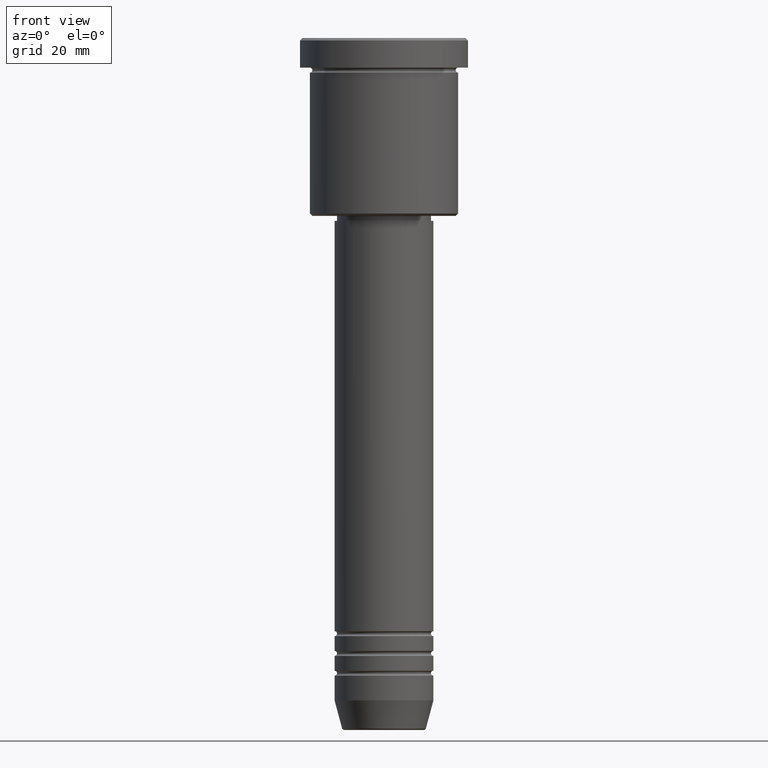
[diagram: clean part render]
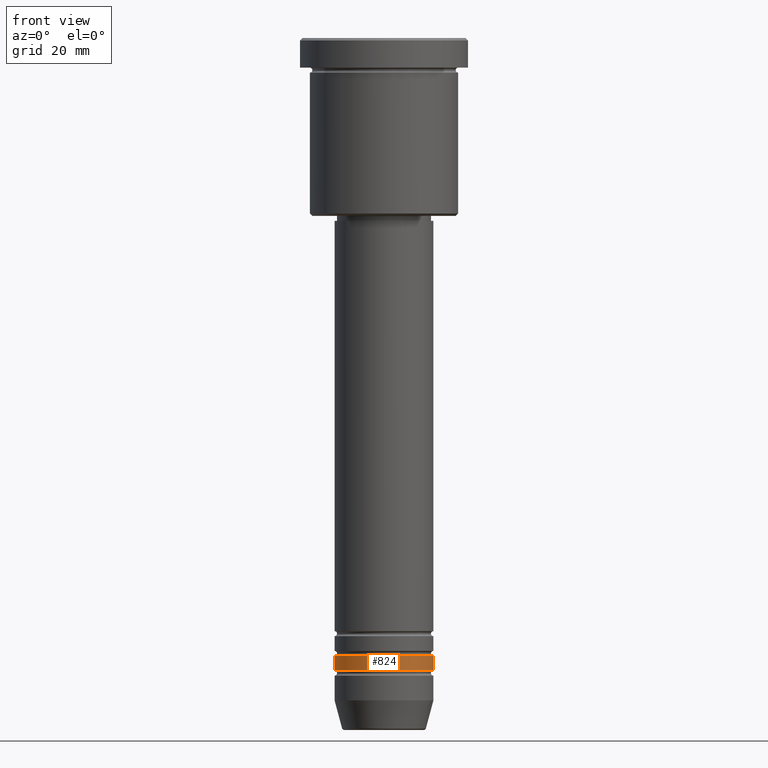
[diagram: same view with one face highlighted and labeled with its STEP entity id]
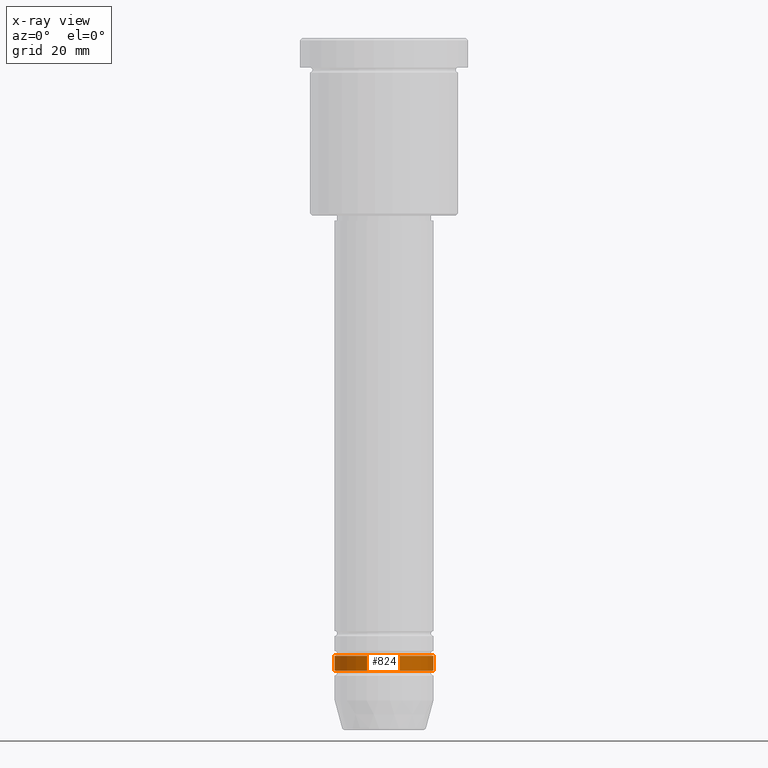
[diagram: x-ray of the same camera — body ghosted, the highlighted face saturated]
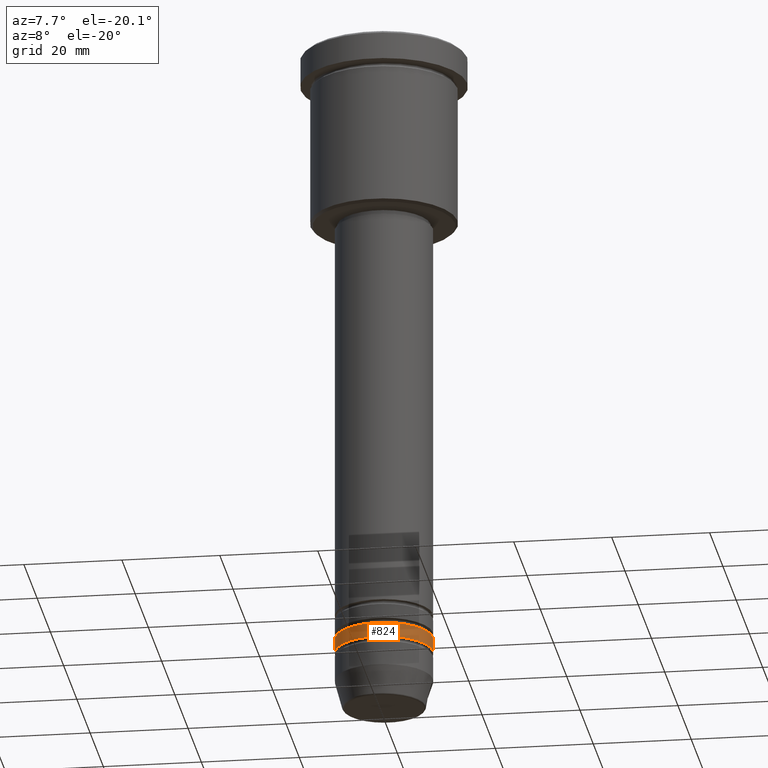
[diagram: same view with one face highlighted and labeled with its STEP entity id]
A machine part, front view. The second image highlights one B-rep face of the part: STEP entity #824.
The next image is the same camera in x-ray: the body ghosted, the highlighted face saturated — about 0% of this face is hidden behind the body in this view.
A second angle (auxiliary view) of the same face is appended — the face is thin or edge-on in the first view.
In plain terms, the highlighted cylindrical surface (partial cylindrical patch) has radius 10 mm, axis along (-0, -0, 1).
Its self-contained STEP definition (entity closure, byte-faithful):
#4 = CARTESIAN_POINT ( 'NONE',  ( -10.00000000000000000, 1.224646799147353256E-15, -125.0000000000000000 ) ) ;
#7 = EDGE_CURVE ( 'NONE', #934, #755, #679, .T. ) ;
#33 = CARTESIAN_POINT ( 'NONE',  ( 0.000000000000000000, 0.000000000000000000, -128.0000000000000000 ) ) ;
#109 = CARTESIAN_POINT ( 'NONE',  ( 10.00000000000000000, 0.000000000000000000, -125.0000000000000000 ) ) ;
#131 = DIRECTION ( 'NONE',  ( 1.000000000000000000, 0.000000000000000000, 0.000000000000000000 ) ) ;
#154 = DIRECTION ( 'NONE',  ( 1.000000000000000000, 0.000000000000000000, 0.000000000000000000 ) ) ;
#163 = AXIS2_PLACEMENT_3D ( 'NONE', #316, #1055, #231 ) ;
#177 = DIRECTION ( 'NONE',  ( -0.000000000000000000, -0.000000000000000000, 1.000000000000000000 ) ) ;
#207 = VECTOR ( 'NONE', #643, 1000.000000000000000 ) ;
#231 = DIRECTION ( 'NONE',  ( 1.000000000000000000, 0.000000000000000000, 0.000000000000000000 ) ) ;
#259 = VERTEX_POINT ( 'NONE', #470 ) ;
#305 = CIRCLE ( 'NONE', #343, 10.00000000000000178 ) ;
#316 = CARTESIAN_POINT ( 'NONE',  ( 0.000000000000000000, 0.000000000000000000, -125.0000000000000000 ) ) ;
#343 = AXIS2_PLACEMENT_3D ( 'NONE', #33, #1137, #131 ) ;
#426 = CARTESIAN_POINT ( 'NONE',  ( -10.00000000000000178, 1.224646799147353454E-15, 0.000000000000000000 ) ) ;
#470 = CARTESIAN_POINT ( 'NONE',  ( -10.00000000000000178, 1.224646799147353454E-15, -128.0000000000000000 ) ) ;
#480 = EDGE_LOOP ( 'NONE', ( #1113, #847, #1045, #1011 ) ) ;
#491 = LINE ( 'NONE', #426, #980 ) ;
#543 = CARTESIAN_POINT ( 'NONE',  ( 0.000000000000000000, 0.000000000000000000, 0.000000000000000000 ) ) ;
#643 = DIRECTION ( 'NONE',  ( -0.000000000000000000, -0.000000000000000000, 1.000000000000000000 ) ) ;
#653 = CARTESIAN_POINT ( 'NONE',  ( 10.00000000000000178, 0.000000000000000000, -128.0000000000000000 ) ) ;
#677 = VERTEX_POINT ( 'NONE', #653 ) ;
#679 = CIRCLE ( 'NONE', #163, 10.00000000000000000 ) ;
#709 = EDGE_CURVE ( 'NONE', #259, #677, #305, .T. ) ;
#739 = EDGE_CURVE ( 'NONE', #259, #934, #491, .T. ) ;
#753 = AXIS2_PLACEMENT_3D ( 'NONE', #543, #177, #154 ) ;
#755 = VERTEX_POINT ( 'NONE', #109 ) ;
#824 = ADVANCED_FACE ( 'NONE', ( #967 ), #986, .T. ) ;
#847 = ORIENTED_EDGE ( 'NONE', *, *, #709, .T. ) ;
#898 = EDGE_CURVE ( 'NONE', #677, #755, #1058, .T. ) ;
#934 = VERTEX_POINT ( 'NONE', #4 ) ;
#967 = FACE_OUTER_BOUND ( 'NONE', #480, .T. ) ;
#980 = VECTOR ( 'NONE', #1143, 1000.000000000000000 ) ;
#986 = CYLINDRICAL_SURFACE ( 'NONE', #753, 10.00000000000000178 ) ;
#998 = CARTESIAN_POINT ( 'NONE',  ( 10.00000000000000178, 0.000000000000000000, 0.000000000000000000 ) ) ;
#1011 = ORIENTED_EDGE ( 'NONE', *, *, #7, .F. ) ;
#1045 = ORIENTED_EDGE ( 'NONE', *, *, #898, .T. ) ;
#1055 = DIRECTION ( 'NONE',  ( -0.000000000000000000, -0.000000000000000000, 1.000000000000000000 ) ) ;
#1058 = LINE ( 'NONE', #998, #207 ) ;
#1113 = ORIENTED_EDGE ( 'NONE', *, *, #739, .F. ) ;
#1137 = DIRECTION ( 'NONE',  ( -0.000000000000000000, -0.000000000000000000, 1.000000000000000000 ) ) ;
#1143 = DIRECTION ( 'NONE',  ( -0.000000000000000000, -0.000000000000000000, 1.000000000000000000 ) ) ;